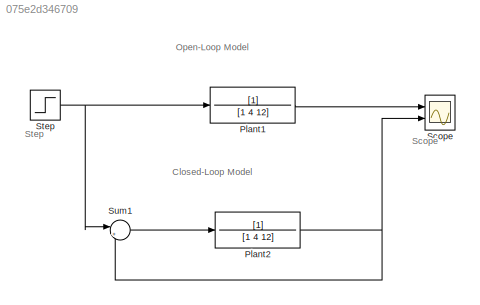
MODEL slx_075e2d346709
KIND model
CONFIG AbsTol = auto
CONFIG EnableMultiTasking = off
CONFIG FixedStep = auto
CONFIG MaxStep = auto
CONFIG MinStep = auto
CONFIG RelTol = 1e-3
CONFIG SampleTimeConstraint = Unconstrained
CONFIG SolverName = ode45
CONFIG StartTime = 0.0
CONFIG StopTime = 10.0
BLOCK [TransferFcn] Plant1
  Denominator = [1 4 12]
BLOCK [TransferFcn] Plant2
  Denominator = [1 4 12]
BLOCK [Scope] Scope
  Floating = off
  NumInputPorts = 2
  Ports = [2]
  ScopeSpecificationString = Simulink.scopes.TimeScopeBlockCfg('CurrentConfiguration', extmgr.ConfigurationSet(extmgr.Configuration('Core','General UI',true),extmgr.Configuration('Core','Source UI',true),extmgr.Configuration('Sources','WiredSimulink',true),extmgr.Configuration('Visuals','Time Domain',true,'SerializedDisplays',{struct('MinYLimReal','-0.02886','MaxYLimReal','0.25973','YLabelReal','','MinYLimMag','0.00000','MaxY...<+1370ch>
BLOCK [Step] Step
  SampleTime = 0
BLOCK [Sum] Sum1
  Inputs = |+-
  Ports = [2, 1]
ANNOTATION (root): Scope
ANNOTATION (root): Closed-Loop Model
ANNOTATION (root): Open-Loop Model
ANNOTATION (root): Step
LINE Plant1:1 -> Scope:1
NET Plant2:1 -> Scope:2, Sum1:2
NET Step:1 -> Plant1:1, Sum1:1
LINE Sum1:1 -> Plant2:1
note: NET lines group one-source signal fan-out (src -> all destinations, sorted); 1:1 wires keep LINE
